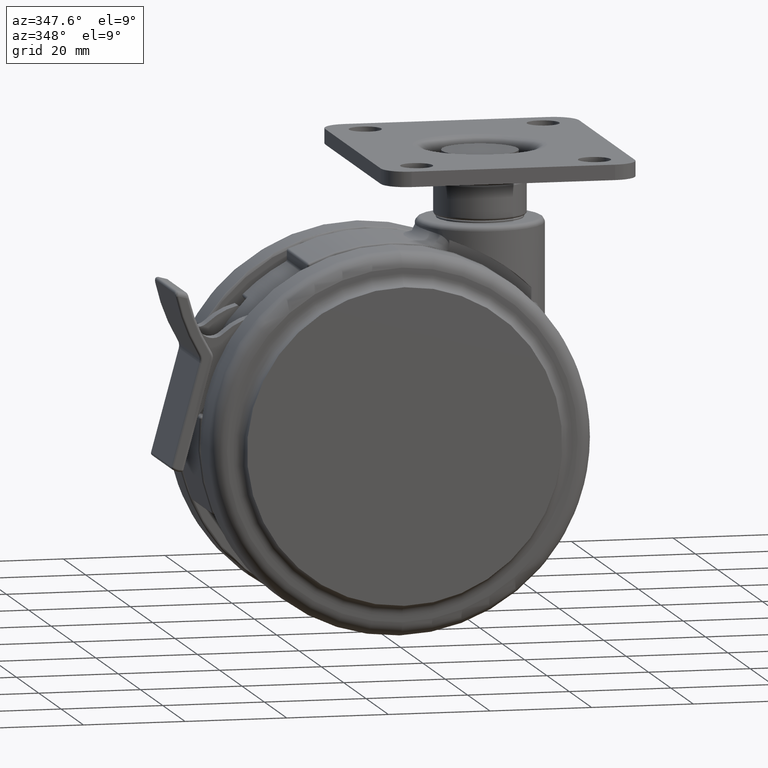
[diagram: clean part render]
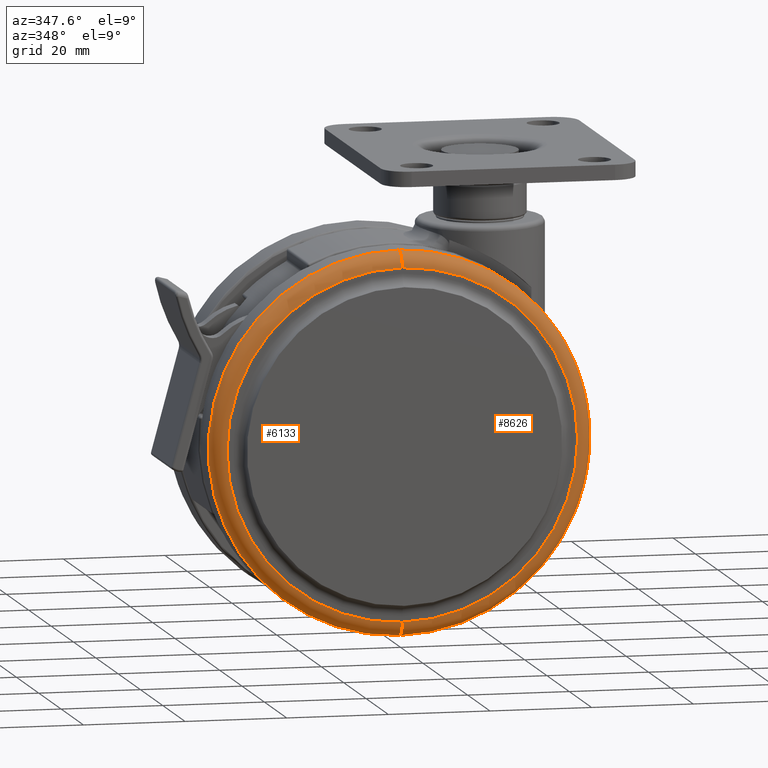
[diagram: same view with one multi-face feature highlighted, each face labeled with its STEP entity id]
A machine part, auxiliary view. The highlighted faces form ONE feature: a constant-radius fillet chain: 2 tangent blend faces with common blend radius 3 mm. The faces share edges in the B-rep.
Their STEP definitions:
[1] entity #6133 (Torus):
#131 = AXIS2_PLACEMENT_3D ( 'NONE', #4159, #669, #7697 ) ;
#570 = AXIS2_PLACEMENT_3D ( 'NONE', #1054, #5973, #1760 ) ;
#669 = DIRECTION ( 'NONE',  ( 0.0000000000000000000, -1.000000000000000000, 0.0000000000000000000 ) ) ;
#991 = EDGE_CURVE ( 'NONE', #1627, #7443, #6501, .T. ) ;
#1054 = CARTESIAN_POINT ( 'NONE',  ( -19.99999999999999600, -18.50000000000000000, -5.999999999999998200 ) ) ;
#1527 = EDGE_CURVE ( 'NONE', #2241, #1627, #1555, .T. ) ;
#1555 = CIRCLE ( 'NONE', #2388, 37.50000000000000000 ) ;
#1627 = VERTEX_POINT ( 'NONE', #7611 ) ;
#1760 = DIRECTION ( 'NONE',  ( 0.0000000000000000000, 0.0000000000000000000, -1.000000000000000000 ) ) ;
#2241 = VERTEX_POINT ( 'NONE', #5699 ) ;
#2388 = AXIS2_PLACEMENT_3D ( 'NONE', #3651, #8566, #4362 ) ;
#2478 = ORIENTED_EDGE ( 'NONE', *, *, #4712, .F. ) ;
#2538 = EDGE_CURVE ( 'NONE', #2241, #6800, #5177, .T. ) ;
#2833 = DIRECTION ( 'NONE',  ( -1.000000000000000000, -0.0000000000000000000, -0.0000000000000000000 ) ) ;
#3020 = ORIENTED_EDGE ( 'NONE', *, *, #991, .T. ) ;
#3094 = DIRECTION ( 'NONE',  ( 0.0000000000000000000, -1.000000000000000000, 0.0000000000000000000 ) ) ;
#3159 = CARTESIAN_POINT ( 'NONE',  ( -20.00000000000000000, -21.50000000000000000, -75.00000000000001400 ) ) ;
#3320 = CARTESIAN_POINT ( 'NONE',  ( -19.99999999999999600, -21.50000000000000000, -5.999999999999998200 ) ) ;
#3651 = CARTESIAN_POINT ( 'NONE',  ( -20.00000000000000000, -18.50000000000000000, -40.50000000000000000 ) ) ;
#3847 = AXIS2_PLACEMENT_3D ( 'NONE', #7037, #2833, #7752 ) ;
#4159 = CARTESIAN_POINT ( 'NONE',  ( -20.00000000000000000, -18.50000000000000000, -40.50000000000000000 ) ) ;
#4362 = DIRECTION ( 'NONE',  ( 0.0000000000000000000, 0.0000000000000000000, -1.000000000000000000 ) ) ;
#4436 = FACE_OUTER_BOUND ( 'NONE', #8515, .T. ) ;
#4712 = EDGE_CURVE ( 'NONE', #6800, #7443, #5422, .T. ) ;
#5177 = CIRCLE ( 'NONE', #570, 2.999999999999999100 ) ;
#5422 = CIRCLE ( 'NONE', #8336, 34.50000000000000700 ) ;
#5699 = CARTESIAN_POINT ( 'NONE',  ( -19.99999999999999600, -18.50000000000000000, -3.000000000000000400 ) ) ;
#5973 = DIRECTION ( 'NONE',  ( 1.000000000000000000, 0.0000000000000000000, -1.224646799147353200E-016 ) ) ;
#6133 = ADVANCED_FACE ( 'NONE', ( #4436 ), #7933, .T. ) ;
#6491 = ORIENTED_EDGE ( 'NONE', *, *, #1527, .T. ) ;
#6501 = CIRCLE ( 'NONE', #3847, 3.000000000000002700 ) ;
#6800 = VERTEX_POINT ( 'NONE', #3320 ) ;
#7037 = CARTESIAN_POINT ( 'NONE',  ( -20.00000000000000000, -18.50000000000000000, -75.00000000000001400 ) ) ;
#7301 = CARTESIAN_POINT ( 'NONE',  ( -20.00000000000000000, -21.50000000000000000, -40.50000000000000000 ) ) ;
#7443 = VERTEX_POINT ( 'NONE', #3159 ) ;
#7611 = CARTESIAN_POINT ( 'NONE',  ( -20.00000000000000000, -18.50000000000000000, -78.00000000000001400 ) ) ;
#7697 = DIRECTION ( 'NONE',  ( 0.0000000000000000000, 0.0000000000000000000, -1.000000000000000000 ) ) ;
#7752 = DIRECTION ( 'NONE',  ( 0.0000000000000000000, 0.0000000000000000000, 1.000000000000000000 ) ) ;
#7933 = TOROIDAL_SURFACE ( 'NONE', #131, 34.50000000000000000, 3.000000000000000000 ) ;
#8001 = DIRECTION ( 'NONE',  ( 0.0000000000000000000, 0.0000000000000000000, -1.000000000000000000 ) ) ;
#8336 = AXIS2_PLACEMENT_3D ( 'NONE', #7301, #3094, #8001 ) ;
#8515 = EDGE_LOOP ( 'NONE', ( #8794, #6491, #3020, #2478 ) ) ;
#8566 = DIRECTION ( 'NONE',  ( 0.0000000000000000000, -1.000000000000000000, 0.0000000000000000000 ) ) ;
#8794 = ORIENTED_EDGE ( 'NONE', *, *, #2538, .F. ) ;
[2] entity #8626 (Torus):
#130 = EDGE_LOOP ( 'NONE', ( #2190, #3829, #4870, #5165 ) ) ;
#421 = DIRECTION ( 'NONE',  ( 0.0000000000000000000, 0.0000000000000000000, -1.000000000000000000 ) ) ;
#570 = AXIS2_PLACEMENT_3D ( 'NONE', #1054, #5973, #1760 ) ;
#837 = CARTESIAN_POINT ( 'NONE',  ( -20.00000000000000000, -21.50000000000000000, -40.50000000000000000 ) ) ;
#991 = EDGE_CURVE ( 'NONE', #1627, #7443, #6501, .T. ) ;
#1054 = CARTESIAN_POINT ( 'NONE',  ( -19.99999999999999600, -18.50000000000000000, -5.999999999999998200 ) ) ;
#1544 = DIRECTION ( 'NONE',  ( 0.0000000000000000000, 0.0000000000000000000, -1.000000000000000000 ) ) ;
#1608 = AXIS2_PLACEMENT_3D ( 'NONE', #8868, #4643, #421 ) ;
#1627 = VERTEX_POINT ( 'NONE', #7611 ) ;
#1760 = DIRECTION ( 'NONE',  ( 0.0000000000000000000, 0.0000000000000000000, -1.000000000000000000 ) ) ;
#2190 = ORIENTED_EDGE ( 'NONE', *, *, #3700, .T. ) ;
#2241 = VERTEX_POINT ( 'NONE', #5699 ) ;
#2538 = EDGE_CURVE ( 'NONE', #2241, #6800, #5177, .T. ) ;
#2833 = DIRECTION ( 'NONE',  ( -1.000000000000000000, -0.0000000000000000000, -0.0000000000000000000 ) ) ;
#3159 = CARTESIAN_POINT ( 'NONE',  ( -20.00000000000000000, -21.50000000000000000, -75.00000000000001400 ) ) ;
#3228 = AXIS2_PLACEMENT_3D ( 'NONE', #837, #5755, #1544 ) ;
#3320 = CARTESIAN_POINT ( 'NONE',  ( -19.99999999999999600, -21.50000000000000000, -5.999999999999998200 ) ) ;
#3700 = EDGE_CURVE ( 'NONE', #1627, #2241, #4805, .T. ) ;
#3829 = ORIENTED_EDGE ( 'NONE', *, *, #2538, .T. ) ;
#3847 = AXIS2_PLACEMENT_3D ( 'NONE', #7037, #2833, #7752 ) ;
#4439 = DIRECTION ( 'NONE',  ( 0.0000000000000000000, 0.0000000000000000000, -1.000000000000000000 ) ) ;
#4643 = DIRECTION ( 'NONE',  ( 0.0000000000000000000, -1.000000000000000000, 0.0000000000000000000 ) ) ;
#4671 = TOROIDAL_SURFACE ( 'NONE', #8284, 34.50000000000000000, 3.000000000000000000 ) ;
#4805 = CIRCLE ( 'NONE', #1608, 37.50000000000000000 ) ;
#4870 = ORIENTED_EDGE ( 'NONE', *, *, #5727, .F. ) ;
#5165 = ORIENTED_EDGE ( 'NONE', *, *, #991, .F. ) ;
#5177 = CIRCLE ( 'NONE', #570, 2.999999999999999100 ) ;
#5699 = CARTESIAN_POINT ( 'NONE',  ( -19.99999999999999600, -18.50000000000000000, -3.000000000000000400 ) ) ;
#5727 = EDGE_CURVE ( 'NONE', #7443, #6800, #7277, .T. ) ;
#5755 = DIRECTION ( 'NONE',  ( 0.0000000000000000000, -1.000000000000000000, 0.0000000000000000000 ) ) ;
#5830 = CARTESIAN_POINT ( 'NONE',  ( -20.00000000000000000, -18.50000000000000000, -40.50000000000000000 ) ) ;
#5973 = DIRECTION ( 'NONE',  ( 1.000000000000000000, 0.0000000000000000000, -1.224646799147353200E-016 ) ) ;
#6501 = CIRCLE ( 'NONE', #3847, 3.000000000000002700 ) ;
#6533 = DIRECTION ( 'NONE',  ( 0.0000000000000000000, -1.000000000000000000, 0.0000000000000000000 ) ) ;
#6800 = VERTEX_POINT ( 'NONE', #3320 ) ;
#7037 = CARTESIAN_POINT ( 'NONE',  ( -20.00000000000000000, -18.50000000000000000, -75.00000000000001400 ) ) ;
#7277 = CIRCLE ( 'NONE', #3228, 34.50000000000000700 ) ;
#7443 = VERTEX_POINT ( 'NONE', #3159 ) ;
#7611 = CARTESIAN_POINT ( 'NONE',  ( -20.00000000000000000, -18.50000000000000000, -78.00000000000001400 ) ) ;
#7752 = DIRECTION ( 'NONE',  ( 0.0000000000000000000, 0.0000000000000000000, 1.000000000000000000 ) ) ;
#8284 = AXIS2_PLACEMENT_3D ( 'NONE', #5830, #6533, #4439 ) ;
#8406 = FACE_OUTER_BOUND ( 'NONE', #130, .T. ) ;
#8626 = ADVANCED_FACE ( 'NONE', ( #8406 ), #4671, .T. ) ;
#8868 = CARTESIAN_POINT ( 'NONE',  ( -20.00000000000000000, -18.50000000000000000, -40.50000000000000000 ) ) ;